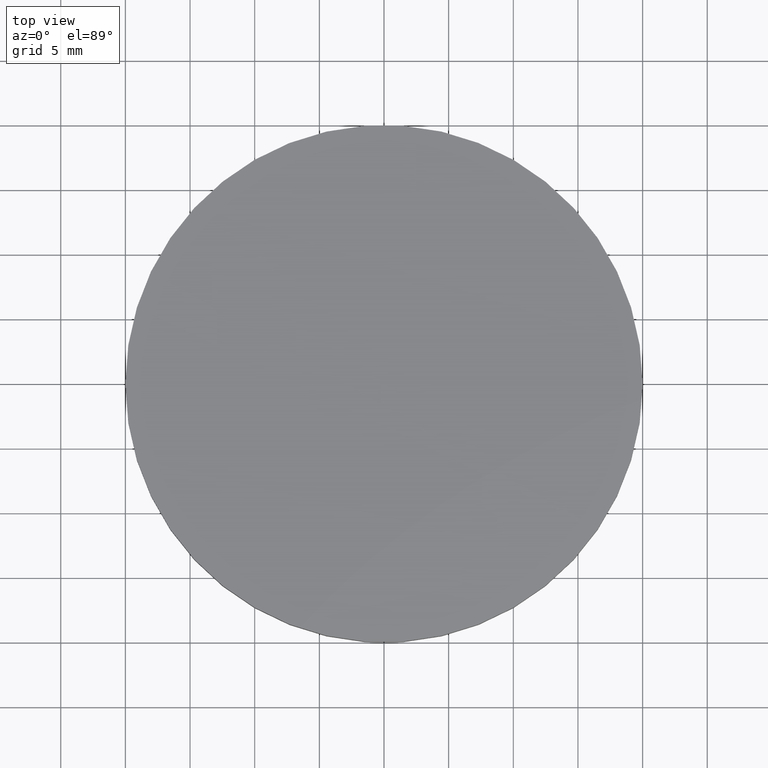
[diagram: clean part render]
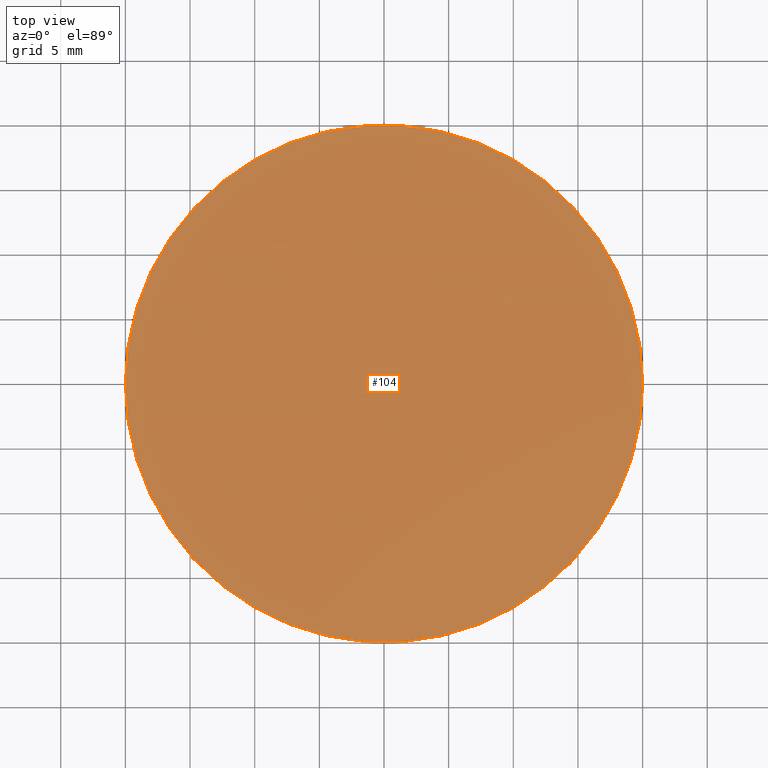
[diagram: same view with one face highlighted and labeled with its STEP entity id]
A machine part, top view. The second image highlights one B-rep face of the part: STEP entity #104.
In plain terms, the highlighted planar face has unit normal (0, 0, 1).
Its self-contained STEP definition (entity closure, byte-faithful):
#5 = DIRECTION ( 'NONE',  ( 0.0000000000000000000, 0.0000000000000000000, 1.000000000000000000 ) ) ;
#6 = CARTESIAN_POINT ( 'NONE',  ( 20.00000000000000000, 2.449293598294706500E-015, 3.000000000000000000 ) ) ;
#15 = AXIS2_PLACEMENT_3D ( 'NONE', #87, #18, #78 ) ;
#18 = DIRECTION ( 'NONE',  ( 0.0000000000000000000, 0.0000000000000000000, 1.000000000000000000 ) ) ;
#20 = AXIS2_PLACEMENT_3D ( 'NONE', #34, #98, #24 ) ;
#22 = EDGE_CURVE ( 'NONE', #62, #67, #131, .T. ) ;
#24 = DIRECTION ( 'NONE',  ( 1.000000000000000000, 0.0000000000000000000, 0.0000000000000000000 ) ) ;
#30 = CIRCLE ( 'NONE', #20, 20.00000000000000000 ) ;
#34 = CARTESIAN_POINT ( 'NONE',  ( 0.0000000000000000000, 0.0000000000000000000, 3.000000000000000000 ) ) ;
#61 = FACE_OUTER_BOUND ( 'NONE', #89, .T. ) ;
#62 = VERTEX_POINT ( 'NONE', #77 ) ;
#65 = DIRECTION ( 'NONE',  ( 1.000000000000000000, 0.0000000000000000000, -0.0000000000000000000 ) ) ;
#67 = VERTEX_POINT ( 'NONE', #6 ) ;
#71 = AXIS2_PLACEMENT_3D ( 'NONE', #112, #5, #65 ) ;
#72 = ORIENTED_EDGE ( 'NONE', *, *, #115, .T. ) ;
#75 = PLANE ( 'NONE',  #71 ) ;
#77 = CARTESIAN_POINT ( 'NONE',  ( -20.00000000000000000, 0.0000000000000000000, 3.000000000000000000 ) ) ;
#78 = DIRECTION ( 'NONE',  ( 1.000000000000000000, 0.0000000000000000000, 0.0000000000000000000 ) ) ;
#87 = CARTESIAN_POINT ( 'NONE',  ( 0.0000000000000000000, 0.0000000000000000000, 3.000000000000000000 ) ) ;
#89 = EDGE_LOOP ( 'NONE', ( #105, #72 ) ) ;
#98 = DIRECTION ( 'NONE',  ( 0.0000000000000000000, 0.0000000000000000000, 1.000000000000000000 ) ) ;
#104 = ADVANCED_FACE ( 'NONE', ( #61 ), #75, .T. ) ;
#105 = ORIENTED_EDGE ( 'NONE', *, *, #22, .T. ) ;
#112 = CARTESIAN_POINT ( 'NONE',  ( 0.0000000000000000000, 0.0000000000000000000, 3.000000000000000000 ) ) ;
#115 = EDGE_CURVE ( 'NONE', #67, #62, #30, .T. ) ;
#131 = CIRCLE ( 'NONE', #15, 20.00000000000000000 ) ;